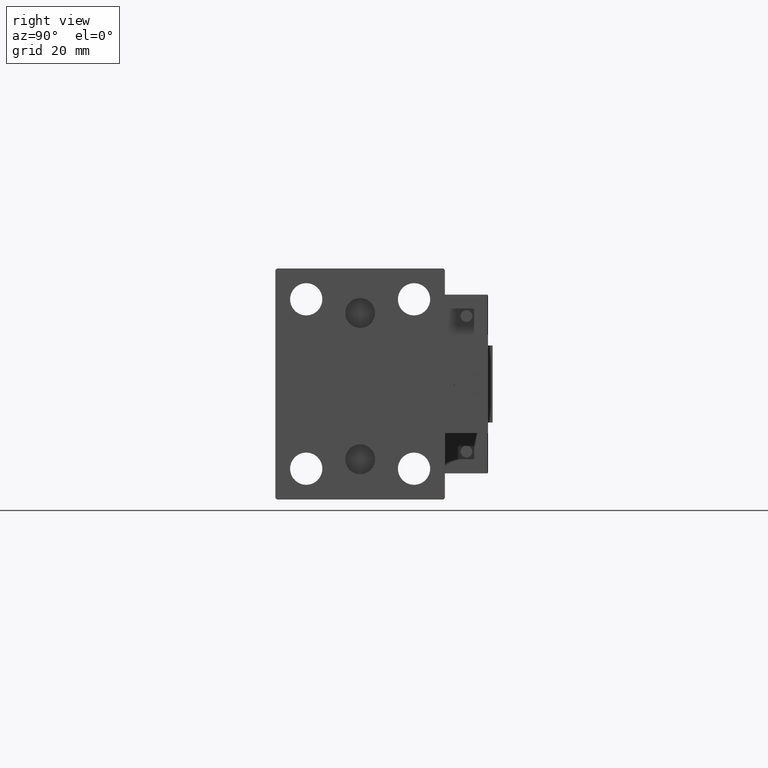
[diagram: clean part render]
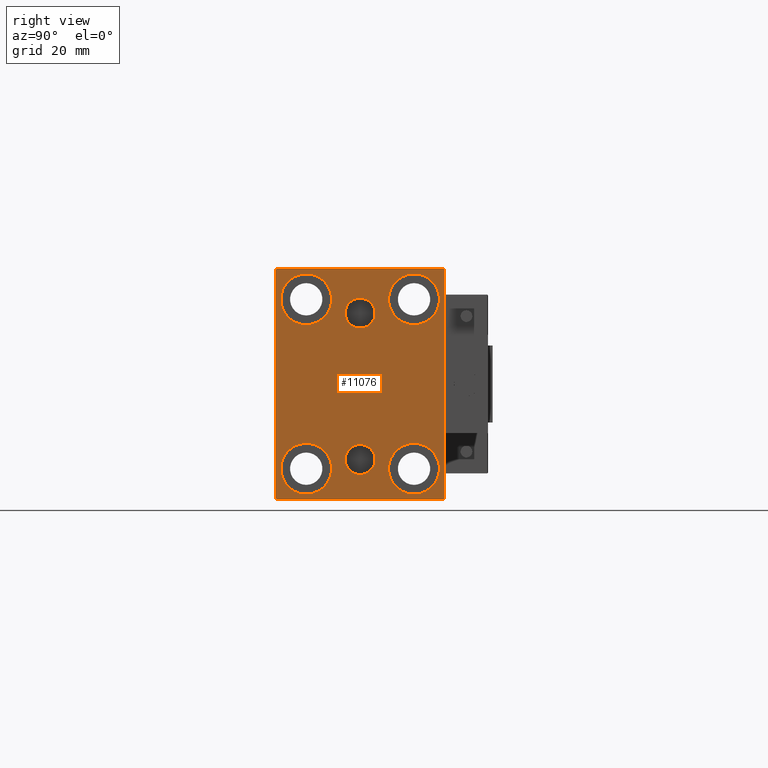
[diagram: same view with one face highlighted and labeled with its STEP entity id]
A machine part, right view. The second image highlights one B-rep face of the part: STEP entity #11076.
In plain terms, the highlighted planar face has unit normal (1, 0, 0).
Its self-contained STEP definition (entity closure, byte-faithful):
#112 = EDGE_CURVE ( 'NONE', #16512, #37818, #34075, .T. ) ;
#1184 = AXIS2_PLACEMENT_3D ( 'NONE', #6495, #22665, #39064 ) ;
#1193 = DIRECTION ( 'NONE',  ( 0.000000000000000000, 0.000000000000000000, -1.000000000000000000 ) ) ;
#1337 = CARTESIAN_POINT ( 'NONE',  ( 115.0000000000000000, -17.49999999999999645, 19.25000000000000000 ) ) ;
#1513 = CARTESIAN_POINT ( 'NONE',  ( 115.0000000000000000, 27.50000000000000355, -37.00000000000000000 ) ) ;
#1571 = ORIENTED_EDGE ( 'NONE', *, *, #32187, .T. ) ;
#1636 = VERTEX_POINT ( 'NONE', #34385 ) ;
#1778 = DIRECTION ( 'NONE',  ( -1.000000000000000000, -0.000000000000000000, -0.000000000000000000 ) ) ;
#2216 = DIRECTION ( 'NONE',  ( 0.000000000000000000, -9.251858538542970348E-17, 1.000000000000000000 ) ) ;
#2550 = FACE_BOUND ( 'NONE', #17707, .T. ) ;
#3368 = EDGE_LOOP ( 'NONE', ( #21381, #31662, #20473, #36199, #17333, #13897, #48438, #50701 ) ) ;
#3497 = DIRECTION ( 'NONE',  ( 0.000000000000000000, 0.000000000000000000, 1.000000000000000000 ) ) ;
#3754 = CARTESIAN_POINT ( 'NONE',  ( 115.0000000000000000, 17.49999999999999645, -19.25000000000000355 ) ) ;
#4042 = EDGE_CURVE ( 'NONE', #1636, #46179, #21641, .T. ) ;
#4375 = DIRECTION ( 'NONE',  ( 0.000000000000000000, 0.000000000000000000, 1.000000000000000000 ) ) ;
#4655 = VERTEX_POINT ( 'NONE', #49366 ) ;
#5863 = CARTESIAN_POINT ( 'NONE',  ( 115.0000000000000000, 32.25000000000038369, -32.24999999999949551 ) ) ;
#6310 = AXIS2_PLACEMENT_3D ( 'NONE', #34062, #1778, #17663 ) ;
#6371 = VECTOR ( 'NONE', #7037, 1000.000000000000000 ) ;
#6495 = CARTESIAN_POINT ( 'NONE',  ( 115.0000000000000000, 3.000384657911015074E-15, -24.49999999999999289 ) ) ;
#6527 = CARTESIAN_POINT ( 'NONE',  ( 115.0000000000000000, -17.50000000000000355, -27.50000000000000355 ) ) ;
#7037 = DIRECTION ( 'NONE',  ( 0.000000000000000000, -1.000000000000000000, -1.261617073437677999E-16 ) ) ;
#7426 = CARTESIAN_POINT ( 'NONE',  ( 115.0000000000000000, 3.000384657911015074E-15, -29.35999999999999233 ) ) ;
#7489 = FACE_BOUND ( 'NONE', #16899, .T. ) ;
#7533 = VERTEX_POINT ( 'NONE', #33777 ) ;
#7831 = DIRECTION ( 'NONE',  ( 0.000000000000000000, 0.000000000000000000, 1.000000000000000000 ) ) ;
#7836 = EDGE_CURVE ( 'NONE', #21178, #41802, #50387, .T. ) ;
#8211 = EDGE_CURVE ( 'NONE', #43379, #51264, #17057, .T. ) ;
#8450 = DIRECTION ( 'NONE',  ( -1.000000000000000000, -0.000000000000000000, -0.000000000000000000 ) ) ;
#8520 = DIRECTION ( 'NONE',  ( 0.000000000000000000, 0.000000000000000000, 1.000000000000000000 ) ) ;
#9235 = CARTESIAN_POINT ( 'NONE',  ( 115.0000000000000000, -27.50000000000000355, -37.50000000000000000 ) ) ;
#9325 = VERTEX_POINT ( 'NONE', #28181 ) ;
#9771 = CARTESIAN_POINT ( 'NONE',  ( 115.0000000000000000, 17.49999999999999645, -35.75000000000000711 ) ) ;
#9831 = EDGE_CURVE ( 'NONE', #46179, #51059, #34309, .T. ) ;
#9967 = ORIENTED_EDGE ( 'NONE', *, *, #11416, .F. ) ;
#10084 = CARTESIAN_POINT ( 'NONE',  ( 115.0000000000000000, -32.25000000000000000, -32.25000000000000000 ) ) ;
#10169 = CARTESIAN_POINT ( 'NONE',  ( 115.0000000000000000, 27.49999999999999645, 37.50000000000000711 ) ) ;
#10233 = EDGE_CURVE ( 'NONE', #4655, #40114, #50656, .T. ) ;
#10355 = DIRECTION ( 'NONE',  ( 1.000000000000000000, 0.000000000000000000, 0.000000000000000000 ) ) ;
#10380 = AXIS2_PLACEMENT_3D ( 'NONE', #13146, #13398, #29058 ) ;
#10742 = CARTESIAN_POINT ( 'NONE',  ( 115.0000000000000000, -27.50000000000000355, -37.00000000000000000 ) ) ;
#11076 = ADVANCED_FACE ( 'NONE', ( #38516, #2550, #7489, #23140, #46334, #23397, #18711 ), #34590, .T. ) ;
#11416 = EDGE_CURVE ( 'NONE', #7533, #49321, #30487, .T. ) ;
#11806 = CARTESIAN_POINT ( 'NONE',  ( 115.0000000000000000, -17.50000000000000355, -35.75000000000000711 ) ) ;
#12042 = EDGE_CURVE ( 'NONE', #35890, #9325, #42486, .T. ) ;
#12069 = EDGE_CURVE ( 'NONE', #51264, #43379, #49686, .T. ) ;
#13146 = CARTESIAN_POINT ( 'NONE',  ( 115.0000000000000000, -17.50000000000000355, -27.50000000000000355 ) ) ;
#13398 = DIRECTION ( 'NONE',  ( -1.000000000000000000, -0.000000000000000000, -0.000000000000000000 ) ) ;
#13786 = CARTESIAN_POINT ( 'NONE',  ( 115.0000000000000000, -27.50000000000000355, 37.50000000000000000 ) ) ;
#13865 = AXIS2_PLACEMENT_3D ( 'NONE', #6527, #41974, #30505 ) ;
#13897 = ORIENTED_EDGE ( 'NONE', *, *, #10233, .T. ) ;
#13916 = CIRCLE ( 'NONE', #38900, 4.859999999999999432 ) ;
#16339 = AXIS2_PLACEMENT_3D ( 'NONE', #38764, #10355, #42679 ) ;
#16512 = VERTEX_POINT ( 'NONE', #37819 ) ;
#16899 = EDGE_LOOP ( 'NONE', ( #38826, #1571 ) ) ;
#17057 = CIRCLE ( 'NONE', #10380, 8.250000000000000000 ) ;
#17333 = ORIENTED_EDGE ( 'NONE', *, *, #32993, .T. ) ;
#17663 = DIRECTION ( 'NONE',  ( 0.000000000000000000, 0.000000000000000000, 1.000000000000000000 ) ) ;
#17707 = EDGE_LOOP ( 'NONE', ( #31363, #47533 ) ) ;
#17976 = LINE ( 'NONE', #42207, #43716 ) ;
#18321 = CARTESIAN_POINT ( 'NONE',  ( 115.0000000000000000, 3.595563002296627957E-15, -19.63999999999999346 ) ) ;
#18406 = ORIENTED_EDGE ( 'NONE', *, *, #12069, .T. ) ;
#18711 = FACE_OUTER_BOUND ( 'NONE', #3368, .T. ) ;
#19108 = AXIS2_PLACEMENT_3D ( 'NONE', #26952, #30599, #3497 ) ;
#19661 = ORIENTED_EDGE ( 'NONE', *, *, #51122, .T. ) ;
#19672 = AXIS2_PLACEMENT_3D ( 'NONE', #35049, #26206, #50195 ) ;
#19721 = VECTOR ( 'NONE', #2216, 1000.000000000000000 ) ;
#20009 = DIRECTION ( 'NONE',  ( -1.000000000000000000, -0.000000000000000000, -0.000000000000000000 ) ) ;
#20061 = ORIENTED_EDGE ( 'NONE', *, *, #8211, .T. ) ;
#20144 = CARTESIAN_POINT ( 'NONE',  ( 115.0000000000000000, -17.49999999999999645, 27.49999999999999645 ) ) ;
#20473 = ORIENTED_EDGE ( 'NONE', *, *, #4042, .T. ) ;
#21178 = VERTEX_POINT ( 'NONE', #7426 ) ;
#21381 = ORIENTED_EDGE ( 'NONE', *, *, #12042, .T. ) ;
#21641 = LINE ( 'NONE', #13786, #36082 ) ;
#21679 = CARTESIAN_POINT ( 'NONE',  ( 115.0000000000000000, 26.99999999999999645, 37.50000000000000711 ) ) ;
#21906 = LINE ( 'NONE', #42474, #27108 ) ;
#22120 = VECTOR ( 'NONE', #22613, 1000.000000000000114 ) ;
#22487 = DIRECTION ( 'NONE',  ( -0.000000000000000000, 0.7071067811865378028, 0.7071067811865573427 ) ) ;
#22523 = DIRECTION ( 'NONE',  ( -1.000000000000000000, -0.000000000000000000, -0.000000000000000000 ) ) ;
#22613 = DIRECTION ( 'NONE',  ( -0.000000000000000000, 0.7071067811865474617, -0.7071067811865474617 ) ) ;
#22665 = DIRECTION ( 'NONE',  ( 1.000000000000000000, 0.000000000000000000, -0.000000000000000000 ) ) ;
#23140 = FACE_BOUND ( 'NONE', #23849, .T. ) ;
#23397 = FACE_BOUND ( 'NONE', #46148, .T. ) ;
#23849 = EDGE_LOOP ( 'NONE', ( #29467, #46755 ) ) ;
#24358 = DIRECTION ( 'NONE',  ( 0.000000000000000000, 0.000000000000000000, 1.000000000000000000 ) ) ;
#24741 = CIRCLE ( 'NONE', #49692, 8.249999999999992895 ) ;
#26206 = DIRECTION ( 'NONE',  ( 1.000000000000000000, 0.000000000000000000, 0.000000000000000000 ) ) ;
#26208 = AXIS2_PLACEMENT_3D ( 'NONE', #31999, #47912, #4375 ) ;
#26952 = CARTESIAN_POINT ( 'NONE',  ( 115.0000000000000000, 17.50000000000000355, 27.49999999999999645 ) ) ;
#27108 = VECTOR ( 'NONE', #34388, 1000.000000000000000 ) ;
#28053 = CARTESIAN_POINT ( 'NONE',  ( 115.0000000000000000, -3.571693674697836683E-15, 23.00000000000000711 ) ) ;
#28181 = CARTESIAN_POINT ( 'NONE',  ( 115.0000000000000000, -27.00000000000001776, 37.50000000000000000 ) ) ;
#28512 = CARTESIAN_POINT ( 'NONE',  ( 115.0000000000000000, -27.00000000000000355, -37.50000000000000000 ) ) ;
#28779 = CIRCLE ( 'NONE', #6310, 8.249999999999992895 ) ;
#29058 = DIRECTION ( 'NONE',  ( 0.000000000000000000, 0.000000000000000000, 1.000000000000000000 ) ) ;
#29467 = ORIENTED_EDGE ( 'NONE', *, *, #41019, .T. ) ;
#30196 = AXIS2_PLACEMENT_3D ( 'NONE', #39550, #20009, #8520 ) ;
#30487 = CIRCLE ( 'NONE', #19672, 4.859999999999999432 ) ;
#30505 = DIRECTION ( 'NONE',  ( 0.000000000000000000, 0.000000000000000000, 1.000000000000000000 ) ) ;
#30599 = DIRECTION ( 'NONE',  ( -1.000000000000000000, -0.000000000000000000, -0.000000000000000000 ) ) ;
#31293 = VECTOR ( 'NONE', #22487, 1000.000000000000000 ) ;
#31363 = ORIENTED_EDGE ( 'NONE', *, *, #7836, .F. ) ;
#31602 = DIRECTION ( 'NONE',  ( 0.000000000000000000, 0.000000000000000000, 1.000000000000000000 ) ) ;
#31662 = ORIENTED_EDGE ( 'NONE', *, *, #39673, .T. ) ;
#31999 = CARTESIAN_POINT ( 'NONE',  ( 115.0000000000000000, 3.000384657911015074E-15, -24.49999999999999289 ) ) ;
#32187 = EDGE_CURVE ( 'NONE', #49424, #44952, #49407, .T. ) ;
#32802 = CIRCLE ( 'NONE', #1184, 4.859999999999999432 ) ;
#32993 = EDGE_CURVE ( 'NONE', #51059, #4655, #40526, .T. ) ;
#33086 = VERTEX_POINT ( 'NONE', #1337 ) ;
#33189 = CIRCLE ( 'NONE', #44004, 8.249999999999992895 ) ;
#33493 = VECTOR ( 'NONE', #48105, 1000.000000000000000 ) ;
#33777 = CARTESIAN_POINT ( 'NONE',  ( 115.0000000000000000, -2.976515330312223406E-15, 27.86000000000000654 ) ) ;
#34062 = CARTESIAN_POINT ( 'NONE',  ( 115.0000000000000000, -17.49999999999999645, 27.49999999999999645 ) ) ;
#34075 = CIRCLE ( 'NONE', #19108, 8.249999999999992895 ) ;
#34216 = CARTESIAN_POINT ( 'NONE',  ( 115.0000000000000000, 17.49999999999999645, -27.50000000000000355 ) ) ;
#34309 = LINE ( 'NONE', #10084, #22120 ) ;
#34360 = EDGE_CURVE ( 'NONE', #44952, #49424, #50194, .T. ) ;
#34385 = CARTESIAN_POINT ( 'NONE',  ( 115.0000000000000000, -27.50000000000000355, 37.00000000000000000 ) ) ;
#34388 = DIRECTION ( 'NONE',  ( -0.000000000000000000, -0.7071067811865524577, 0.7071067811865426878 ) ) ;
#34590 = PLANE ( 'NONE',  #16339 ) ;
#35049 = CARTESIAN_POINT ( 'NONE',  ( 115.0000000000000000, -3.571693674697836683E-15, 23.00000000000000711 ) ) ;
#35680 = EDGE_LOOP ( 'NONE', ( #40843, #9967 ) ) ;
#35890 = VERTEX_POINT ( 'NONE', #21679 ) ;
#35986 = AXIS2_PLACEMENT_3D ( 'NONE', #34216, #22523, #7831 ) ;
#36082 = VECTOR ( 'NONE', #40927, 1000.000000000000000 ) ;
#36199 = ORIENTED_EDGE ( 'NONE', *, *, #9831, .T. ) ;
#36211 = EDGE_CURVE ( 'NONE', #41802, #21178, #32802, .T. ) ;
#37153 = CARTESIAN_POINT ( 'NONE',  ( 115.0000000000000000, -17.49999999999999645, 35.74999999999999289 ) ) ;
#37413 = CARTESIAN_POINT ( 'NONE',  ( 115.0000000000000000, 27.50000000000000355, -37.50000000000000000 ) ) ;
#37639 = CARTESIAN_POINT ( 'NONE',  ( 115.0000000000000000, -3.571693674697836683E-15, 18.14000000000000767 ) ) ;
#37818 = VERTEX_POINT ( 'NONE', #40234 ) ;
#37819 = CARTESIAN_POINT ( 'NONE',  ( 115.0000000000000000, 17.50000000000000355, 19.25000000000000000 ) ) ;
#38040 = DIRECTION ( 'NONE',  ( 0.000000000000000000, -0.7071067811865378028, -0.7071067811865573427 ) ) ;
#38516 = FACE_BOUND ( 'NONE', #35680, .T. ) ;
#38764 = CARTESIAN_POINT ( 'NONE',  ( 115.0000000000000000, 0.000000000000000000, 0.000000000000000000 ) ) ;
#38826 = ORIENTED_EDGE ( 'NONE', *, *, #34360, .T. ) ;
#38900 = AXIS2_PLACEMENT_3D ( 'NONE', #28053, #44978, #1193 ) ;
#39064 = DIRECTION ( 'NONE',  ( 0.000000000000000000, 0.000000000000000000, 1.000000000000000000 ) ) ;
#39550 = CARTESIAN_POINT ( 'NONE',  ( 115.0000000000000000, 17.49999999999999645, -27.50000000000000355 ) ) ;
#39673 = EDGE_CURVE ( 'NONE', #9325, #1636, #17976, .T. ) ;
#39970 = CARTESIAN_POINT ( 'NONE',  ( 115.0000000000000000, 27.49999999999999645, 37.00000000000001421 ) ) ;
#40114 = VERTEX_POINT ( 'NONE', #1513 ) ;
#40234 = CARTESIAN_POINT ( 'NONE',  ( 115.0000000000000000, 17.50000000000000355, 35.74999999999999289 ) ) ;
#40409 = VERTEX_POINT ( 'NONE', #37153 ) ;
#40524 = ORIENTED_EDGE ( 'NONE', *, *, #112, .T. ) ;
#40526 = LINE ( 'NONE', #9235, #33493 ) ;
#40731 = EDGE_CURVE ( 'NONE', #49525, #35890, #21906, .T. ) ;
#40843 = ORIENTED_EDGE ( 'NONE', *, *, #44864, .F. ) ;
#40927 = DIRECTION ( 'NONE',  ( 0.000000000000000000, 0.000000000000000000, -1.000000000000000000 ) ) ;
#41019 = EDGE_CURVE ( 'NONE', #33086, #40409, #28779, .T. ) ;
#41802 = VERTEX_POINT ( 'NONE', #18321 ) ;
#41974 = DIRECTION ( 'NONE',  ( -1.000000000000000000, -0.000000000000000000, -0.000000000000000000 ) ) ;
#42207 = CARTESIAN_POINT ( 'NONE',  ( 115.0000000000000000, -32.25000000000038369, 32.24999999999949551 ) ) ;
#42474 = CARTESIAN_POINT ( 'NONE',  ( 115.0000000000000000, 32.24999999999981526, 32.25000000000025580 ) ) ;
#42486 = LINE ( 'NONE', #10169, #6371 ) ;
#42679 = DIRECTION ( 'NONE',  ( 0.000000000000000000, 0.000000000000000000, -1.000000000000000000 ) ) ;
#43379 = VERTEX_POINT ( 'NONE', #11806 ) ;
#43716 = VECTOR ( 'NONE', #38040, 1000.000000000000000 ) ;
#43963 = LINE ( 'NONE', #37413, #19721 ) ;
#44004 = AXIS2_PLACEMENT_3D ( 'NONE', #44413, #8450, #24358 ) ;
#44413 = CARTESIAN_POINT ( 'NONE',  ( 115.0000000000000000, 17.50000000000000355, 27.49999999999999645 ) ) ;
#44864 = EDGE_CURVE ( 'NONE', #49321, #7533, #13916, .T. ) ;
#44952 = VERTEX_POINT ( 'NONE', #9771 ) ;
#44978 = DIRECTION ( 'NONE',  ( 1.000000000000000000, 0.000000000000000000, 0.000000000000000000 ) ) ;
#45841 = EDGE_CURVE ( 'NONE', #40114, #49525, #43963, .T. ) ;
#46148 = EDGE_LOOP ( 'NONE', ( #20061, #18406 ) ) ;
#46179 = VERTEX_POINT ( 'NONE', #10742 ) ;
#46334 = FACE_BOUND ( 'NONE', #50967, .T. ) ;
#46755 = ORIENTED_EDGE ( 'NONE', *, *, #47413, .T. ) ;
#47413 = EDGE_CURVE ( 'NONE', #40409, #33086, #24741, .T. ) ;
#47533 = ORIENTED_EDGE ( 'NONE', *, *, #36211, .F. ) ;
#47912 = DIRECTION ( 'NONE',  ( 1.000000000000000000, 0.000000000000000000, -0.000000000000000000 ) ) ;
#48024 = DIRECTION ( 'NONE',  ( -1.000000000000000000, -0.000000000000000000, -0.000000000000000000 ) ) ;
#48105 = DIRECTION ( 'NONE',  ( 0.000000000000000000, 1.000000000000000000, 0.000000000000000000 ) ) ;
#48438 = ORIENTED_EDGE ( 'NONE', *, *, #45841, .T. ) ;
#49321 = VERTEX_POINT ( 'NONE', #37639 ) ;
#49366 = CARTESIAN_POINT ( 'NONE',  ( 115.0000000000000000, 27.00000000000001776, -37.50000000000000000 ) ) ;
#49407 = CIRCLE ( 'NONE', #35986, 8.250000000000000000 ) ;
#49424 = VERTEX_POINT ( 'NONE', #3754 ) ;
#49525 = VERTEX_POINT ( 'NONE', #39970 ) ;
#49686 = CIRCLE ( 'NONE', #13865, 8.250000000000000000 ) ;
#49692 = AXIS2_PLACEMENT_3D ( 'NONE', #20144, #48024, #31602 ) ;
#50194 = CIRCLE ( 'NONE', #30196, 8.250000000000000000 ) ;
#50195 = DIRECTION ( 'NONE',  ( 0.000000000000000000, 0.000000000000000000, -1.000000000000000000 ) ) ;
#50387 = CIRCLE ( 'NONE', #26208, 4.859999999999999432 ) ;
#50656 = LINE ( 'NONE', #5863, #31293 ) ;
#50701 = ORIENTED_EDGE ( 'NONE', *, *, #40731, .T. ) ;
#50967 = EDGE_LOOP ( 'NONE', ( #40524, #19661 ) ) ;
#51059 = VERTEX_POINT ( 'NONE', #28512 ) ;
#51122 = EDGE_CURVE ( 'NONE', #37818, #16512, #33189, .T. ) ;
#51180 = CARTESIAN_POINT ( 'NONE',  ( 115.0000000000000000, -17.50000000000000355, -19.25000000000000355 ) ) ;
#51264 = VERTEX_POINT ( 'NONE', #51180 ) ;